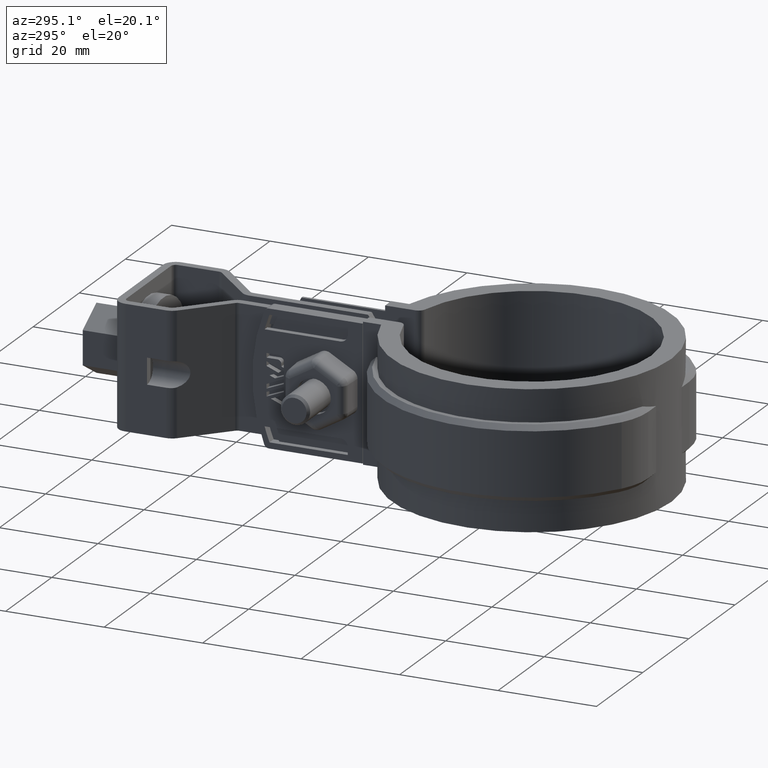
[diagram: clean part render]
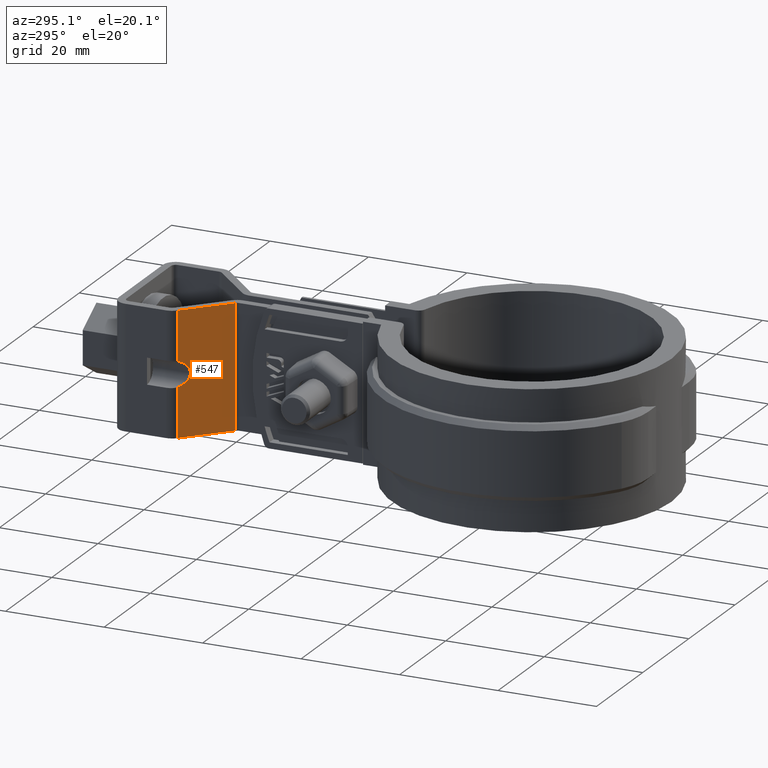
[diagram: same view with one face highlighted and labeled with its STEP entity id]
A machine part, auxiliary view. The second image highlights one B-rep face of the part: STEP entity #547.
In plain terms, the highlighted planar face has unit normal (-0.6983, -0.7158, 0).
Its self-contained STEP definition (entity closure, byte-faithful):
#547 = ADVANCED_FACE( '', ( #1102 ), #1103, .T. );
#1102 = FACE_OUTER_BOUND( '', #2487, .T. );
#1103 = PLANE( '', #2488 );
#2487 = EDGE_LOOP( '', ( #5918, #5919, #5920, #5921, #5922, #5923 ) );
#2488 = AXIS2_PLACEMENT_3D( '', #5924, #5925, #5926 );
#5918 = ORIENTED_EDGE( '', *, *, #7858, .F. );
#5919 = ORIENTED_EDGE( '', *, *, #7813, .T. );
#5920 = ORIENTED_EDGE( '', *, *, #7762, .T. );
#5921 = ORIENTED_EDGE( '', *, *, #7843, .T. );
#5922 = ORIENTED_EDGE( '', *, *, #7833, .F. );
#5923 = ORIENTED_EDGE( '', *, *, #7867, .T. );
#5924 = CARTESIAN_POINT( '', ( -3.90167616505177, 59.2598213101280, -6.13798040172142E-008 ) );
#5925 = DIRECTION( '', ( -0.698323835528018, -0.715781964520927, 3.65652942179987E-010 ) );
#5926 = DIRECTION( '', ( 0.715781964520927, -0.698323835528018, 3.53887801810090E-010 ) );
#7762 = EDGE_CURVE( '', #9066, #9064, #9067, .T. );
#7813 = EDGE_CURVE( '', #9147, #9066, #9150, .T. );
#7833 = EDGE_CURVE( '', #9184, #9185, #9186, .T. );
#7843 = EDGE_CURVE( '', #9064, #9185, #9200, .T. );
#7858 = EDGE_CURVE( '', #9147, #9221, #9222, .T. );
#7867 = EDGE_CURVE( '', #9184, #9221, #9235, .T. );
#9064 = VERTEX_POINT( '', #13249 );
#9066 = VERTEX_POINT( '', #13251 );
#9067 = LINE( '', #13252, #13253 );
#9147 = VERTEX_POINT( '', #13389 );
#9150 = LINE( '', #13393, #13394 );
#9184 = VERTEX_POINT( '', #13447 );
#9185 = VERTEX_POINT( '', #13448 );
#9186 = ELLIPSE( '', #13449, 3.70224472166266, 2.64999999999997 );
#9200 = LINE( '', #13484, #13485 );
#9221 = VERTEX_POINT( '', #13516 );
#9222 = LINE( '', #13517, #13518 );
#9235 = LINE( '', #13535, #13536 );
#13249 = CARTESIAN_POINT( '', ( -11.4656419729872, 66.6392998058393, -6.51194931311494E-008 ) );
#13251 = CARTESIAN_POINT( '', ( -3.30167616504973, 58.6744554835404, -6.10831663028222E-008 ) );
#13252 = CARTESIAN_POINT( '', ( -3.90167616505177, 59.2598213101280, -6.13798040172142E-008 ) );
#13253 = VECTOR( '', #15141, 1000.00000000000 );
#13389 = CARTESIAN_POINT( '', ( -3.30167616510068, 58.6744554708190, -25.0000000610832 ) );
#13393 = CARTESIAN_POINT( '', ( -3.30167616504973, 58.6744554835404, -6.10831801806100E-008 ) );
#13394 = VECTOR( '', #15218, 1000.00000000000 );
#13447 = CARTESIAN_POINT( '', ( -11.4656419730178, 66.6392997981905, -15.0312611114177 ) );
#13448 = CARTESIAN_POINT( '', ( -11.4656419730075, 66.6392998007666, -9.96873901882126 ) );
#13449 = AXIS2_PLACEMENT_3D( '', #15252, #15253, #15254 );
#13484 = CARTESIAN_POINT( '', ( -11.4656419729872, 66.6392998058393, -6.51194931311494E-008 ) );
#13485 = VECTOR( '', #15266, 1000.00000000000 );
#13516 = CARTESIAN_POINT( '', ( -11.4656419730381, 66.6392997931179, -25.0000000651195 ) );
#13517 = CARTESIAN_POINT( '', ( -3.90167616510272, 59.2598212974066, -25.0000000613798 ) );
#13518 = VECTOR( '', #15289, 1000.00000000000 );
#13535 = CARTESIAN_POINT( '', ( -11.4656419729872, 66.6392998058393, -6.51194931311494E-008 ) );
#13536 = VECTOR( '', #15306, 1000.00000000000 );
#15141 = DIRECTION( '', ( -0.715781964520927, 0.698323835528018, -3.53887801810090E-010 ) );
#15218 = DIRECTION( '', ( 2.03772028593234E-012, 5.08856008656157E-010, 1.00000000000000 ) );
#15252 = CARTESIAN_POINT( '', ( -12.2500000006359, 67.4045271081098, -12.5000000655073 ) );
#15253 = DIRECTION( '', ( -0.698323835528017, -0.715781964520928, 3.65652977282436E-010 ) );
#15254 = DIRECTION( '', ( -0.715781964520928, 0.698323835528017, -3.53887765830079E-010 ) );
#15266 = DIRECTION( '', ( -2.03765905561465E-012, -5.08856068393049E-010, -1.00000000000000 ) );
#15289 = DIRECTION( '', ( -0.715781964520927, 0.698323835528018, -3.53887801810090E-010 ) );
#15306 = DIRECTION( '', ( -2.03765905561465E-012, -5.08856068393049E-010, -1.00000000000000 ) );